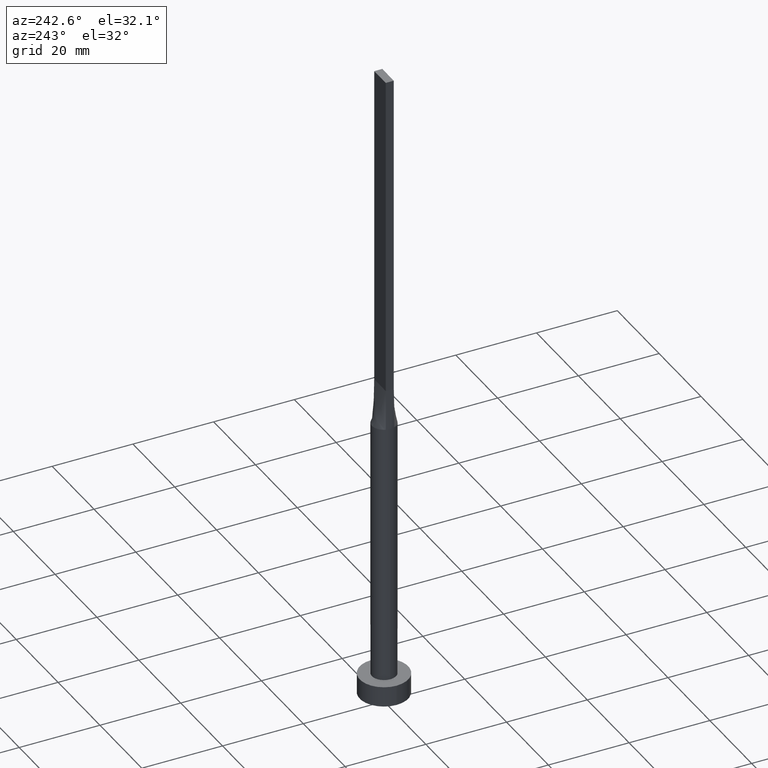
[diagram: clean part render]
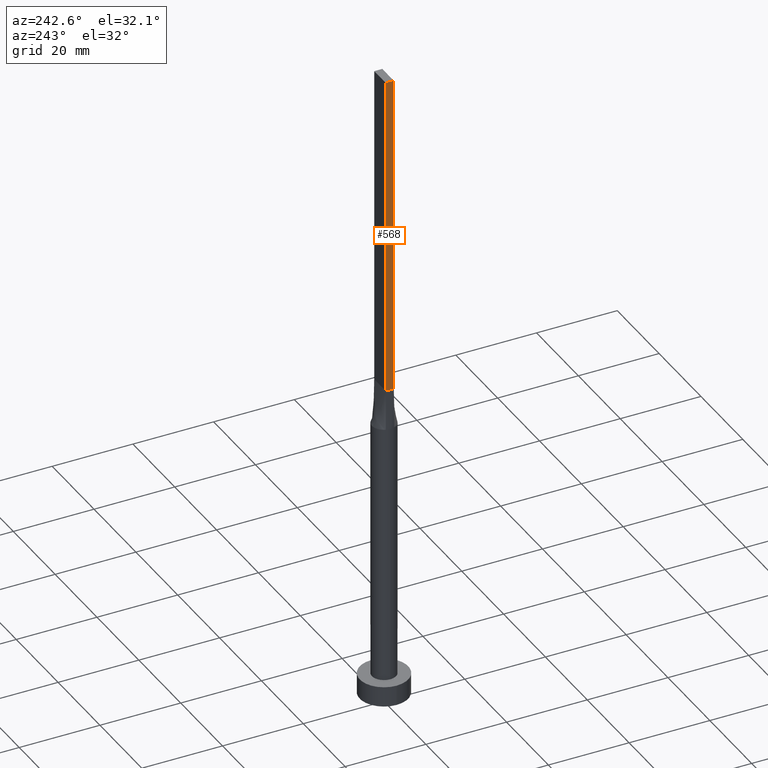
[diagram: same view with one face highlighted and labeled with its STEP entity id]
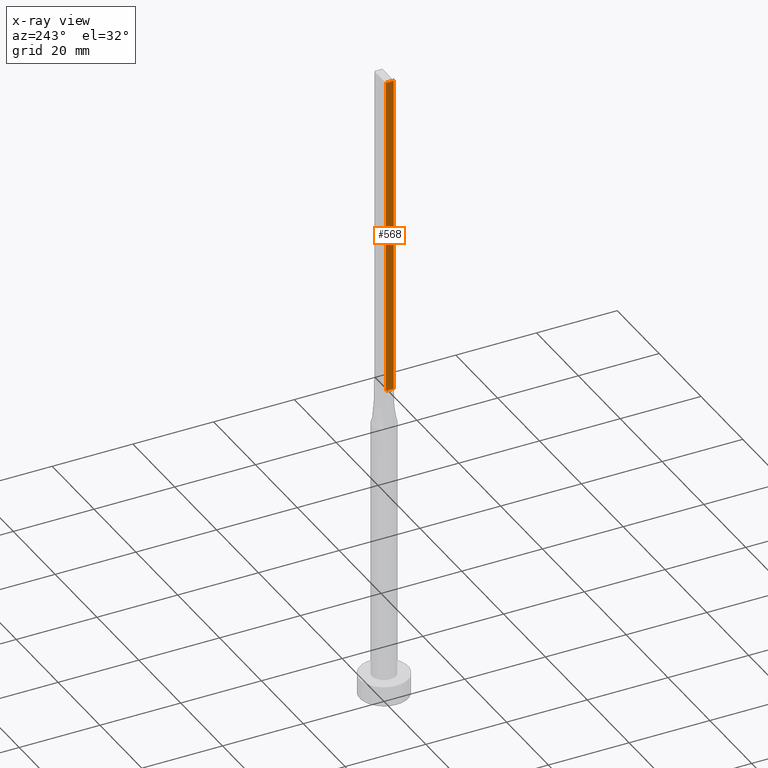
[diagram: x-ray of the same camera — body ghosted, the highlighted face saturated]
A machine part, auxiliary view. The second image highlights one B-rep face of the part: STEP entity #568.
The next image is the same camera in x-ray: the body ghosted, the highlighted face saturated — about 0% of this face is hidden behind the body in this view.
In plain terms, the highlighted planar face has unit normal (1, -0, 0).
Its self-contained STEP definition (entity closure, byte-faithful):
#1 = LINE ( 'NONE', #88, #5 ) ;
#5 = VECTOR ( 'NONE', #262, 1000.000000000000000 ) ;
#32 = LINE ( 'NONE', #255, #285 ) ;
#34 = FACE_OUTER_BOUND ( 'NONE', #179, .T. ) ;
#36 = ORIENTED_EDGE ( 'NONE', *, *, #486, .T. ) ;
#43 = ORIENTED_EDGE ( 'NONE', *, *, #80, .F. ) ;
#73 = PLANE ( 'NONE',  #232 ) ;
#80 = EDGE_CURVE ( 'NONE', #502, #139, #528, .T. ) ;
#84 = DIRECTION ( 'NONE',  ( -0.000000000000000000, -0.000000000000000000, -1.000000000000000000 ) ) ;
#88 = CARTESIAN_POINT ( 'NONE',  ( -2.750000000000000000, -0.9999999999999993339, 160.0000000000000000 ) ) ;
#119 = CARTESIAN_POINT ( 'NONE',  ( -2.749999999999999556, 1.000000000000000000, 160.0000000000000000 ) ) ;
#127 = DIRECTION ( 'NONE',  ( 1.000000000000000000, -2.168404344971010101E-16, 0.000000000000000000 ) ) ;
#139 = VERTEX_POINT ( 'NONE', #536 ) ;
#148 = ORIENTED_EDGE ( 'NONE', *, *, #460, .T. ) ;
#174 = VERTEX_POINT ( 'NONE', #509 ) ;
#179 = EDGE_LOOP ( 'NONE', ( #36, #341, #43, #148 ) ) ;
#190 = CARTESIAN_POINT ( 'NONE',  ( -2.749999999999999556, 1.000000000000000000, 80.00000000000000000 ) ) ;
#226 = VECTOR ( 'NONE', #297, 1000.000000000000000 ) ;
#232 = AXIS2_PLACEMENT_3D ( 'NONE', #571, #127, #248 ) ;
#248 = DIRECTION ( 'NONE',  ( 2.168404344971010101E-16, 1.000000000000000000, 0.000000000000000000 ) ) ;
#255 = CARTESIAN_POINT ( 'NONE',  ( -2.749999999999999556, 1.000000000000000000, 160.0000000000000000 ) ) ;
#262 = DIRECTION ( 'NONE',  ( -0.000000000000000000, -0.000000000000000000, -1.000000000000000000 ) ) ;
#267 = VERTEX_POINT ( 'NONE', #190 ) ;
#285 = VECTOR ( 'NONE', #84, 1000.000000000000000 ) ;
#297 = DIRECTION ( 'NONE',  ( -2.168404344971009854E-16, -1.000000000000000000, 0.000000000000000000 ) ) ;
#341 = ORIENTED_EDGE ( 'NONE', *, *, #351, .F. ) ;
#351 = EDGE_CURVE ( 'NONE', #139, #174, #1, .T. ) ;
#356 = CARTESIAN_POINT ( 'NONE',  ( -2.749999999999999556, 1.000000000000000000, 160.0000000000000000 ) ) ;
#384 = VECTOR ( 'NONE', #574, 1000.000000000000000 ) ;
#460 = EDGE_CURVE ( 'NONE', #502, #267, #32, .T. ) ;
#479 = CARTESIAN_POINT ( 'NONE',  ( -2.749999999999999556, 1.000000000000000000, 80.00000000000000000 ) ) ;
#486 = EDGE_CURVE ( 'NONE', #267, #174, #565, .T. ) ;
#502 = VERTEX_POINT ( 'NONE', #356 ) ;
#509 = CARTESIAN_POINT ( 'NONE',  ( -2.750000000000000000, -0.9999999999999993339, 80.00000000000000000 ) ) ;
#528 = LINE ( 'NONE', #119, #226 ) ;
#536 = CARTESIAN_POINT ( 'NONE',  ( -2.750000000000000000, -0.9999999999999993339, 160.0000000000000000 ) ) ;
#565 = LINE ( 'NONE', #479, #384 ) ;
#568 = ADVANCED_FACE ( 'NONE', ( #34 ), #73, .F. ) ;
#571 = CARTESIAN_POINT ( 'NONE',  ( -2.749999999999999556, 1.000000000000000000, 160.0000000000000000 ) ) ;
#574 = DIRECTION ( 'NONE',  ( -2.168404344971009854E-16, -1.000000000000000000, 0.000000000000000000 ) ) ;